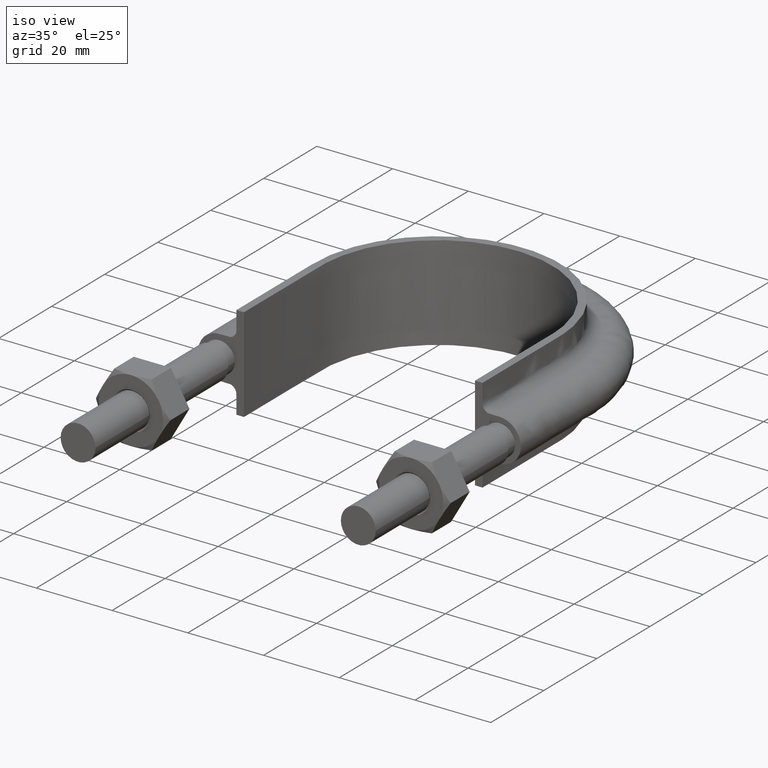
[diagram: clean part render]
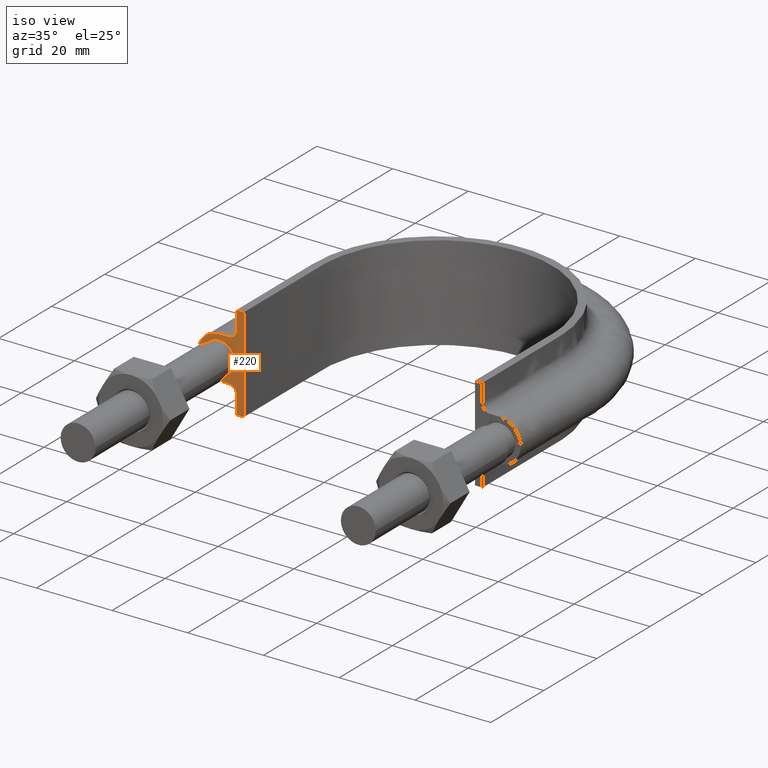
[diagram: same view with one face highlighted and labeled with its STEP entity id]
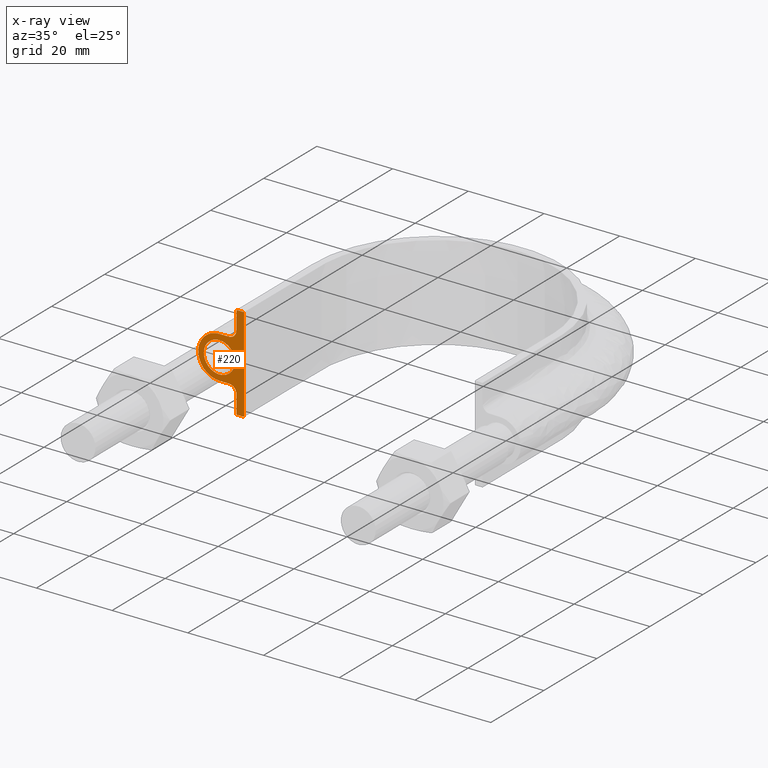
[diagram: x-ray of the same camera — body ghosted, the highlighted face saturated]
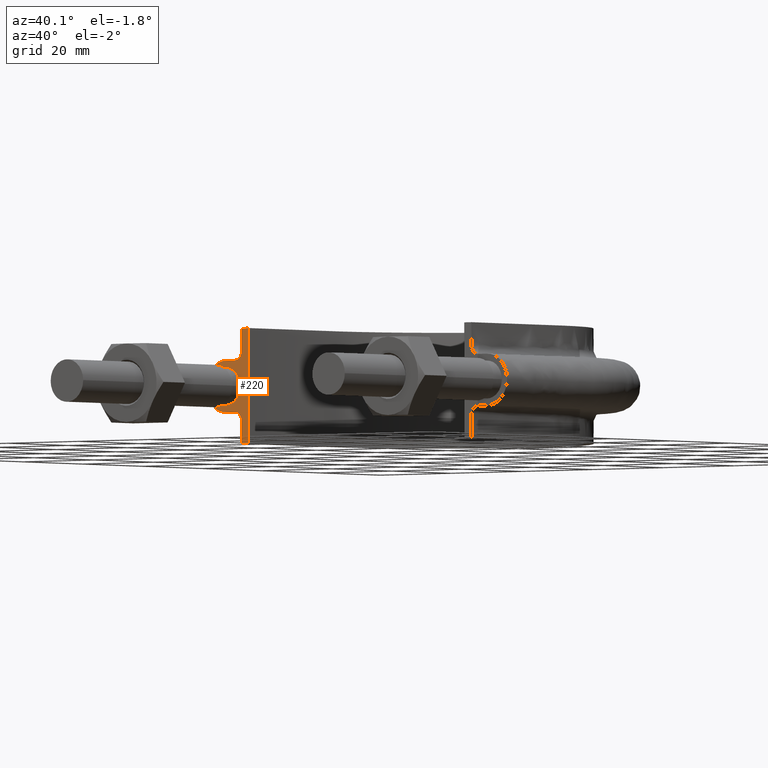
[diagram: same view with one face highlighted and labeled with its STEP entity id]
A machine part, iso view. The second image highlights one B-rep face of the part: STEP entity #220.
The next image is the same camera in x-ray: the body ghosted, the highlighted face saturated — about 0% of this face is hidden behind the body in this view.
A second angle (auxiliary view) of the same face is appended — the face is thin or edge-on in the first view.
In plain terms, the highlighted planar face has unit normal (-0, -1, 0).
Its self-contained STEP definition (entity closure, byte-faithful):
#220 = ADVANCED_FACE( '', ( #299, #300 ), #301, .T. );
#299 = FACE_BOUND( '', #471, .T. );
#300 = FACE_OUTER_BOUND( '', #472, .T. );
#301 = PLANE( '', #473 );
#471 = EDGE_LOOP( '', ( #1473 ) );
#472 = EDGE_LOOP( '', ( #1474, #1475, #1476, #1477 ) );
#473 = AXIS2_PLACEMENT_3D( '', #1478, #1479, #1480 );
#1473 = ORIENTED_EDGE( '', *, *, #2008, .F. );
#1474 = ORIENTED_EDGE( '', *, *, #2009, .F. );
#1475 = ORIENTED_EDGE( '', *, *, #2010, .F. );
#1476 = ORIENTED_EDGE( '', *, *, #2011, .T. );
#1477 = ORIENTED_EDGE( '', *, *, #2012, .T. );
#1478 = CARTESIAN_POINT( '', ( -45.0000000000000, 53.3000000000001, -12.5000000000000 ) );
#1479 = DIRECTION( '', ( -1.22460635382238E-016, -1.00000000000000, 0.000000000000000 ) );
#1480 = DIRECTION( '', ( -1.00000000000000, 1.22460635382238E-016, 0.000000000000000 ) );
#2008 = EDGE_CURVE( '', #2165, #2165, #2166, .T. );
#2009 = EDGE_CURVE( '', #2167, #2168, #2169, .T. );
#2010 = EDGE_CURVE( '', #2170, #2167, #2171, .T. );
#2011 = EDGE_CURVE( '', #2170, #2172, #2173, .T. );
#2012 = EDGE_CURVE( '', #2172, #2168, #2174, .T. );
#2165 = VERTEX_POINT( '', #2457 );
#2166 = B_SPLINE_CURVE_WITH_KNOTS( '', 3, ( #2458, #2459, #2460, #2461, #2462, #2463, #2464, #2465, #2466, #2467 ), .UNSPECIFIED., .T., .F., ( 4, 1, 1, 1, 1, 1, 1, 4 ), ( 0.000000000000000, 0.00365634574703305, 0.00731269149406611, 0.0109690372410992, 0.0146253829881322, 0.0182817287351653, 0.0219380744821983, 0.0255944202292314 ), .UNSPECIFIED. );
#2167 = VERTEX_POINT( '', #2468 );
#2168 = VERTEX_POINT( '', #2469 );
#2169 = LINE( '', #2470, #2471 );
#2170 = VERTEX_POINT( '', #2472 );
#2171 = LINE( '', #2473, #2474 );
#2172 = VERTEX_POINT( '', #2475 );
#2173 = B_SPLINE_CURVE_WITH_KNOTS( '', 3, ( #2476, #2477, #2478, #2479, #2480, #2481, #2482, #2483, #2484, #2485, #2486, #2487, #2488, #2489, #2490, #2491, #2492, #2493, #2494, #2495, #2496, #2497, #2498, #2499, #2500, #2501, #2502, #2503, #2504, #2505, #2506 ), .UNSPECIFIED., .F., .F., ( 4, 3, 1, 1, 1, 3, 3, 1, 1, 1, 3, 3, 1, 1, 1, 3, 4 ), ( 0.000000000000000, 0.00240485792065908, 0.00480971584131817, 0.00721457376197725, 0.00961943168263633, 0.0120242896032954, 0.0144291475239545, 0.0168340054446136, 0.0192388633652727, 0.0216437212859318, 0.0240485792065908, 0.0264534371272499, 0.0288582950479090, 0.0312631529685681, 0.0336680108892272, 0.0360728688098862, 0.0384777267305453 ), .UNSPECIFIED. );
#2174 = LINE( '', #2507, #2508 );
#2457 = CARTESIAN_POINT( '', ( -32.9000000000000, 53.3000000000001, 4.33680868994202E-016 ) );
#2458 = CARTESIAN_POINT( '', ( -32.9000000000000, 53.3000000000001, 4.33680868994202E-016 ) );
#2459 = CARTESIAN_POINT( '', ( -32.9000000000000, 53.3000000000001, 1.22184926194408 ) );
#2460 = CARTESIAN_POINT( '', ( -34.0768231851219, 53.3000000000001, 3.66554778583225 ) );
#2461 = CARTESIAN_POINT( '', ( -38.0432697263483, 53.3000000000001, 4.57086332538454 ) );
#2462 = CARTESIAN_POINT( '', ( -41.2241128848102, 53.3000000000001, 2.03422555230246 ) );
#2463 = CARTESIAN_POINT( '', ( -41.2241128848102, 53.3000000000001, -2.03422555230246 ) );
#2464 = CARTESIAN_POINT( '', ( -38.0432697263483, 53.3000000000001, -4.57086332538454 ) );
#2465 = CARTESIAN_POINT( '', ( -34.0768231851220, 53.3000000000001, -3.66554778583225 ) );
#2466 = CARTESIAN_POINT( '', ( -32.9000000000000, 53.3000000000001, -1.22184926194408 ) );
#2467 = CARTESIAN_POINT( '', ( -32.9000000000000, 53.3000000000001, 4.33680868994202E-016 ) );
#2468 = CARTESIAN_POINT( '', ( -30.5000000000000, 53.3000000000001, 12.5000000000000 ) );
#2469 = CARTESIAN_POINT( '', ( -30.5000000000000, 53.3000000000001, -12.5000000000000 ) );
#2470 = CARTESIAN_POINT( '', ( -30.5000000000000, 53.3000000000001, 12.5000100000910 ) );
#2471 = VECTOR( '', #3077, 1000.00000000000 );
#2472 = CARTESIAN_POINT( '', ( -32.5000000000000, 53.3000000000001, 12.5000000000000 ) );
#2473 = CARTESIAN_POINT( '', ( -45.0000000000000, 53.3000000000001, 12.5000000000000 ) );
#2474 = VECTOR( '', #3078, 1000.00000000000 );
#2475 = CARTESIAN_POINT( '', ( -32.5000000000000, 53.3000000000001, -12.5000000000000 ) );
#2476 = CARTESIAN_POINT( '', ( -32.5000000000000, 53.3000000000001, 12.5000000000000 ) );
#2477 = CARTESIAN_POINT( '', ( -32.5000000000000, 53.3000000000001, 10.8666666666667 ) );
#2478 = CARTESIAN_POINT( '', ( -32.5000000000000, 53.3000000000001, 9.23333333333332 ) );
#2479 = CARTESIAN_POINT( '', ( -32.5000000000000, 53.3000000000001, 7.59999999999998 ) );
#2480 = CARTESIAN_POINT( '', ( -32.5000000000000, 53.3000000000001, 7.33823584172332 ) );
#2481 = CARTESIAN_POINT( '', ( -32.6041362568359, 53.3000000000001, 6.81470752516999 ) );
#2482 = CARTESIAN_POINT( '', ( -33.0489687109389, 53.3000000000001, 6.14896871093886 ) );
#2483 = CARTESIAN_POINT( '', ( -33.7147075251700, 53.3000000000001, 5.70413625683589 ) );
#2484 = CARTESIAN_POINT( '', ( -34.2382358417233, 53.3000000000001, 5.59999999999998 ) );
#2485 = CARTESIAN_POINT( '', ( -34.5000000000000, 53.3000000000001, 5.59999999999998 ) );
#2486 = CARTESIAN_POINT( '', ( -35.3333333333333, 53.3000000000001, 5.60000000000000 ) );
#2487 = CARTESIAN_POINT( '', ( -36.1666666666667, 53.3000000000001, 5.60000000000000 ) );
#2488 = CARTESIAN_POINT( '', ( -37.0000000000000, 53.3000000000001, 5.60000000000000 ) );
#2489 = CARTESIAN_POINT( '', ( -38.4627416997970, 53.3000000000001, 5.60000000000000 ) );
#2490 = CARTESIAN_POINT( '', ( -41.3882250993909, 53.3000000000001, 4.38822509939085 ) );
#2491 = CARTESIAN_POINT( '', ( -43.2058874503046, 53.3000000000001, -1.07693261045861E-015 ) );
#2492 = CARTESIAN_POINT( '', ( -41.3882250993909, 53.3000000000001, -4.38822509939086 ) );
#2493 = CARTESIAN_POINT( '', ( -38.4627416997970, 53.3000000000001, -5.60000000000000 ) );
#2494 = CARTESIAN_POINT( '', ( -37.0000000000000, 53.3000000000001, -5.60000000000000 ) );
#2495 = CARTESIAN_POINT( '', ( -36.1666666666667, 53.3000000000001, -5.60000000000000 ) );
#2496 = CARTESIAN_POINT( '', ( -35.3333333333333, 53.3000000000001, -5.60000000000000 ) );
#2497 = CARTESIAN_POINT( '', ( -34.5000000000000, 53.3000000000001, -5.60000000000000 ) );
#2498 = CARTESIAN_POINT( '', ( -34.2382358417234, 53.3000000000001, -5.60000000000000 ) );
#2499 = CARTESIAN_POINT( '', ( -33.7147075251700, 53.3000000000001, -5.70413625683591 ) );
#2500 = CARTESIAN_POINT( '', ( -33.0489687109389, 53.3000000000001, -6.14896871093888 ) );
#2501 = CARTESIAN_POINT( '', ( -32.6041362568359, 53.3000000000001, -6.81470752517001 ) );
#2502 = CARTESIAN_POINT( '', ( -32.5000000000000, 53.3000000000001, -7.33823584172334 ) );
#2503 = CARTESIAN_POINT( '', ( -32.5000000000000, 53.3000000000001, -7.60000000000000 ) );
#2504 = CARTESIAN_POINT( '', ( -32.5000000000000, 53.3000000000001, -9.23333333333333 ) );
#2505 = CARTESIAN_POINT( '', ( -32.5000000000000, 53.3000000000001, -10.8666666666667 ) );
#2506 = CARTESIAN_POINT( '', ( -32.5000000000000, 53.3000000000001, -12.5000000000000 ) );
#2507 = CARTESIAN_POINT( '', ( -45.0000000000000, 53.3000000000001, -12.5000000000000 ) );
#2508 = VECTOR( '', #3079, 1000.00000000000 );
#3077 = DIRECTION( '', ( 0.000000000000000, 0.000000000000000, -1.00000000000000 ) );
#3078 = DIRECTION( '', ( 1.00000000000000, -1.22460635382238E-016, 0.000000000000000 ) );
#3079 = DIRECTION( '', ( 1.00000000000000, -1.22460635382238E-016, 0.000000000000000 ) );